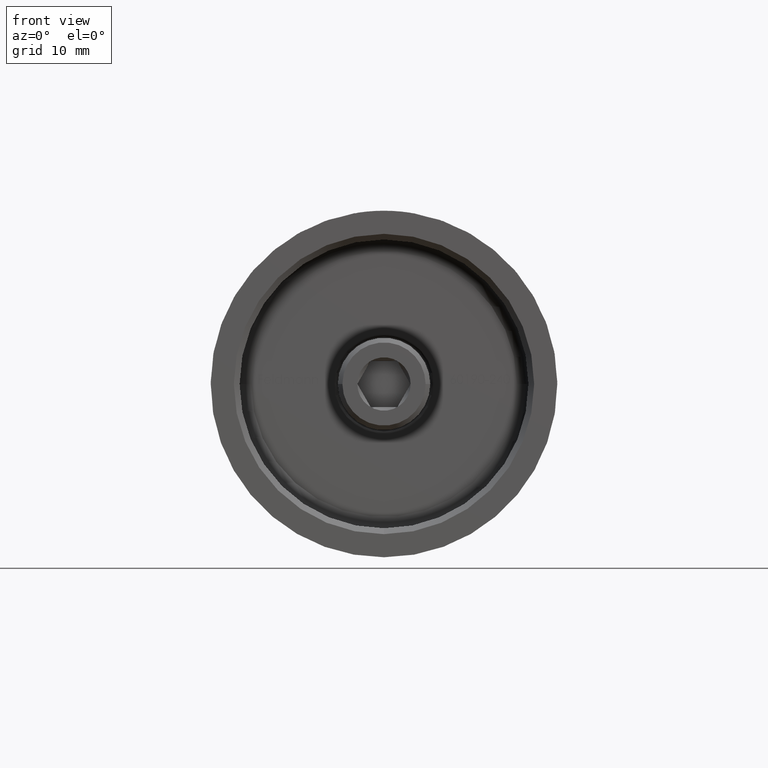
[diagram: clean part render]
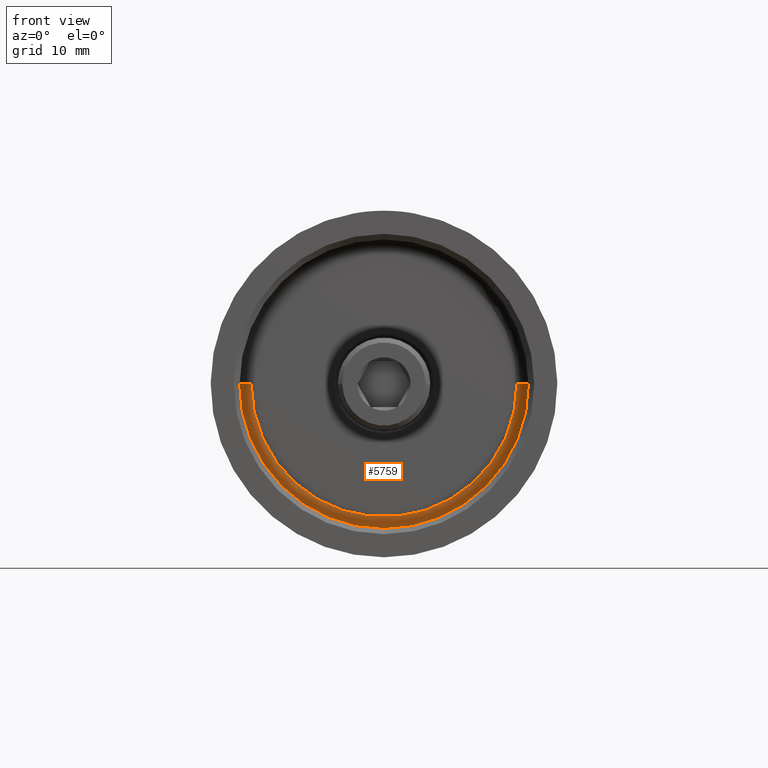
[diagram: same view with one face highlighted and labeled with its STEP entity id]
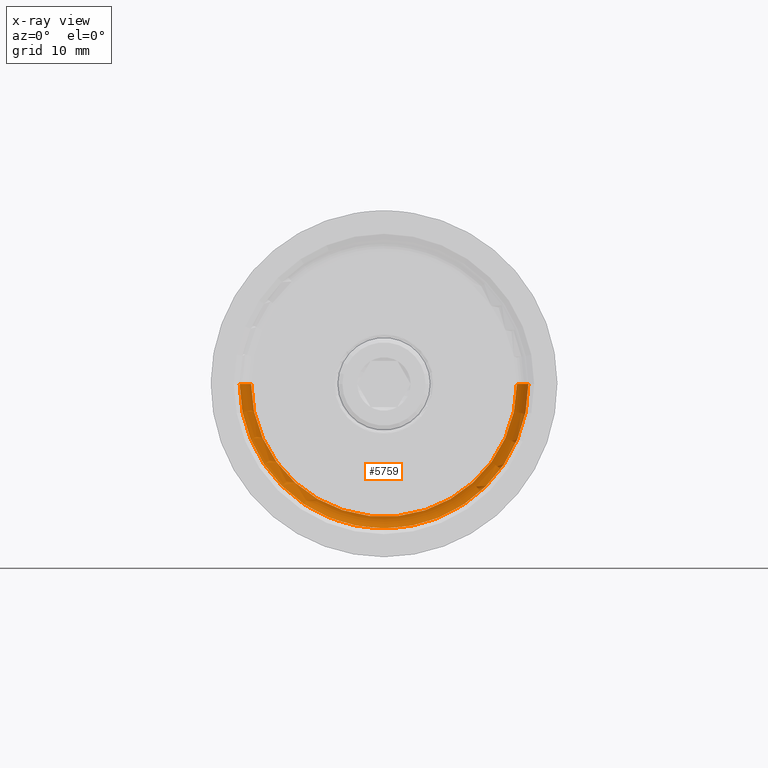
[diagram: x-ray of the same camera — body ghosted, the highlighted face saturated]
A machine part, front view. The second image highlights one B-rep face of the part: STEP entity #5759.
The next image is the same camera in x-ray: the body ghosted, the highlighted face saturated — about 1% of this face is hidden behind the body in this view.
In plain terms, the highlighted toroidal blend (fillet) surface has major radius 11.5 mm and minor (blend) radius 1 mm.
Its self-contained STEP definition (entity closure, byte-faithful):
#944 = AXIS2_PLACEMENT_3D ( 'NONE', #8394, #13504, #5455 ) ;
#1105 = DIRECTION ( 'NONE',  ( 1.224646799147353207E-16, -2.021643378665029326E-47, 1.000000000000000000 ) ) ;
#1221 = AXIS2_PLACEMENT_3D ( 'NONE', #7054, #11859, #10687 ) ;
#1429 = CIRCLE ( 'NONE', #9517, 11.50000000000000000 ) ;
#3429 = EDGE_CURVE ( 'NONE', #6987, #8028, #1429, .T. ) ;
#3707 = ORIENTED_EDGE ( 'NONE', *, *, #14789, .F. ) ;
#3872 = EDGE_LOOP ( 'NONE', ( #8229, #4683, #3707, #11880 ) ) ;
#4014 = DIRECTION ( 'NONE',  ( 1.000000000000000000, 0.000000000000000000, 0.000000000000000000 ) ) ;
#4683 = ORIENTED_EDGE ( 'NONE', *, *, #12204, .T. ) ;
#4802 = CIRCLE ( 'NONE', #15040, 0.9999999999999991118 ) ;
#4886 = FACE_OUTER_BOUND ( 'NONE', #3872, .T. ) ;
#5455 = DIRECTION ( 'NONE',  ( 1.000000000000000000, 0.000000000000000000, 0.000000000000000000 ) ) ;
#5744 = CARTESIAN_POINT ( 'NONE',  ( -11.50000000000000178, 10.49999999999999822, 1.469576158976823947E-15 ) ) ;
#5759 = ADVANCED_FACE ( 'NONE', ( #4886 ), #7696, .F. ) ;
#6463 = CIRCLE ( 'NONE', #944, 12.50000000000000000 ) ;
#6987 = VERTEX_POINT ( 'NONE', #5744 ) ;
#7054 = CARTESIAN_POINT ( 'NONE',  ( 11.49999999999999822, 9.499999999999998224, 0.000000000000000000 ) ) ;
#7265 = EDGE_CURVE ( 'NONE', #8028, #14345, #11315, .T. ) ;
#7290 = VERTEX_POINT ( 'NONE', #14278 ) ;
#7471 = AXIS2_PLACEMENT_3D ( 'NONE', #12413, #11290, #7761 ) ;
#7696 = TOROIDAL_SURFACE ( 'NONE', #7471, 11.50000000000000000, 1.000000000000000000 ) ;
#7761 = DIRECTION ( 'NONE',  ( 1.000000000000000000, -1.650797095189058802E-31, 0.000000000000000000 ) ) ;
#8028 = VERTEX_POINT ( 'NONE', #11654 ) ;
#8229 = ORIENTED_EDGE ( 'NONE', *, *, #3429, .F. ) ;
#8394 = CARTESIAN_POINT ( 'NONE',  ( -2.571758278209441661E-15, 9.499999999999998224, 0.000000000000000000 ) ) ;
#8988 = CARTESIAN_POINT ( 'NONE',  ( -2.571758278209441661E-15, 10.49999999999999822, 0.000000000000000000 ) ) ;
#9517 = AXIS2_PLACEMENT_3D ( 'NONE', #8988, #15118, #4014 ) ;
#9607 = DIRECTION ( 'NONE',  ( 1.000000000000000000, 0.000000000000000000, -1.224646799147353454E-16 ) ) ;
#10687 = DIRECTION ( 'NONE',  ( -1.000000000000000000, 0.000000000000000000, 0.000000000000000000 ) ) ;
#11290 = DIRECTION ( 'NONE',  ( -1.650797095189058802E-31, -1.000000000000000000, -0.000000000000000000 ) ) ;
#11315 = CIRCLE ( 'NONE', #1221, 0.9999999999999991118 ) ;
#11654 = CARTESIAN_POINT ( 'NONE',  ( 11.49999999999999822, 10.49999999999999822, 0.000000000000000000 ) ) ;
#11859 = DIRECTION ( 'NONE',  ( 0.000000000000000000, 0.000000000000000000, -1.000000000000000000 ) ) ;
#11880 = ORIENTED_EDGE ( 'NONE', *, *, #7265, .F. ) ;
#12204 = EDGE_CURVE ( 'NONE', #6987, #7290, #4802, .T. ) ;
#12413 = CARTESIAN_POINT ( 'NONE',  ( -2.571758278209441661E-15, 9.499999999999998224, 0.000000000000000000 ) ) ;
#13063 = CARTESIAN_POINT ( 'NONE',  ( 12.49999999999999822, 9.499999999999998224, 0.000000000000000000 ) ) ;
#13504 = DIRECTION ( 'NONE',  ( 1.650797095189058802E-31, 1.000000000000000000, 0.000000000000000000 ) ) ;
#14278 = CARTESIAN_POINT ( 'NONE',  ( -12.50000000000000178, 9.499999999999998224, 1.530808498934191521E-15 ) ) ;
#14345 = VERTEX_POINT ( 'NONE', #13063 ) ;
#14443 = CARTESIAN_POINT ( 'NONE',  ( -11.50000000000000178, 9.499999999999998224, 1.408343819019456176E-15 ) ) ;
#14789 = EDGE_CURVE ( 'NONE', #14345, #7290, #6463, .T. ) ;
#15040 = AXIS2_PLACEMENT_3D ( 'NONE', #14443, #1105, #9607 ) ;
#15118 = DIRECTION ( 'NONE',  ( -1.650797095189058802E-31, -1.000000000000000000, -0.000000000000000000 ) ) ;